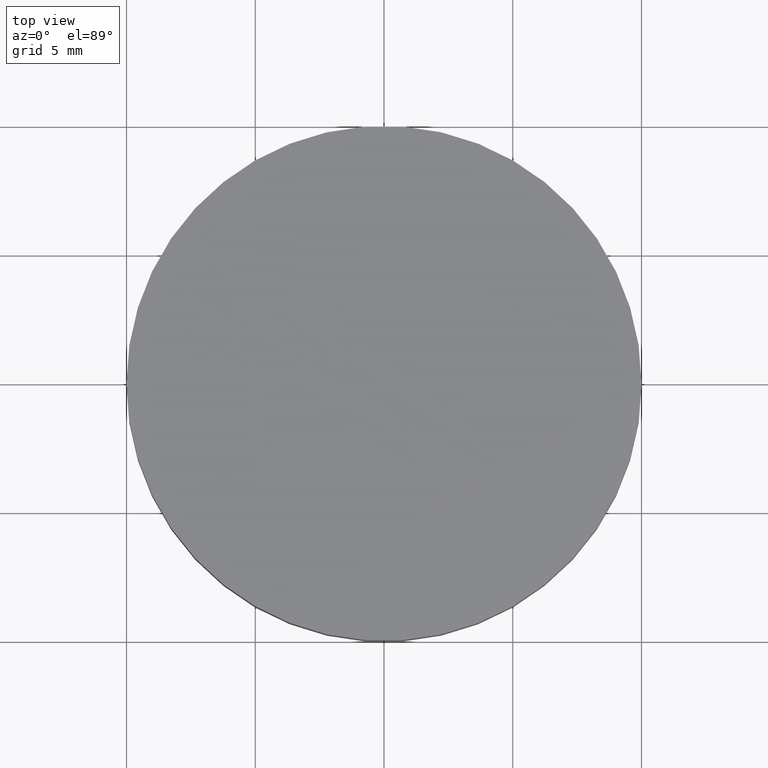
[diagram: clean part render]
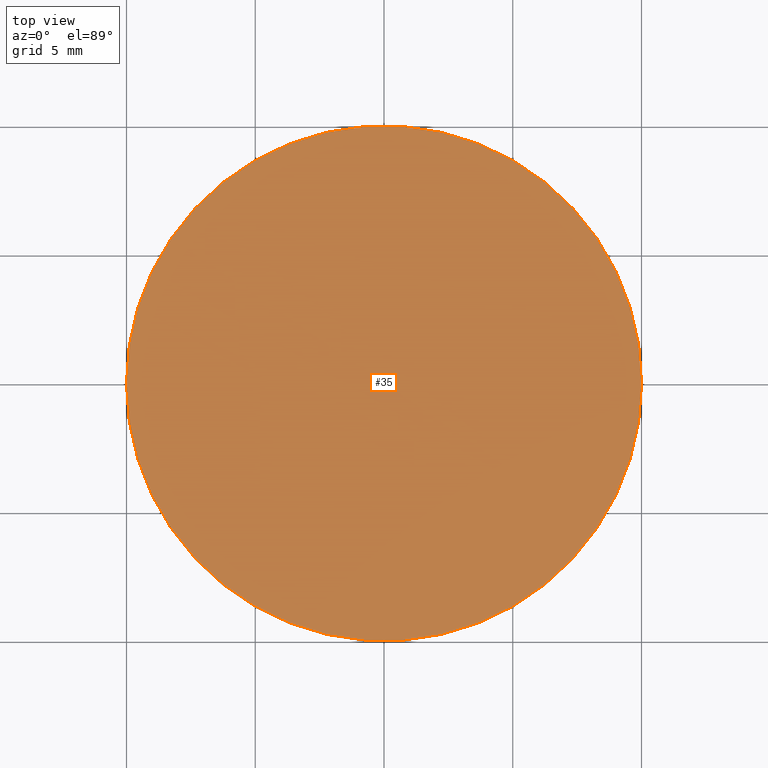
[diagram: same view with one face highlighted and labeled with its STEP entity id]
A machine part, top view. The second image highlights one B-rep face of the part: STEP entity #35.
In plain terms, the highlighted planar face has unit normal (0, 0, 1).
Its self-contained STEP definition (entity closure, byte-faithful):
#5 = DIRECTION ( 'NONE',  ( 1.000000000000000000, 0.0000000000000000000, 0.0000000000000000000 ) ) ;
#16 = CIRCLE ( 'NONE', #181, 10.00000000000000000 ) ;
#17 = EDGE_CURVE ( 'NONE', #126, #213, #64, .T. ) ;
#33 = EDGE_LOOP ( 'NONE', ( #130, #147 ) ) ;
#35 = ADVANCED_FACE ( 'NONE', ( #194 ), #39, .T. ) ;
#39 = PLANE ( 'NONE',  #231 ) ;
#41 = DIRECTION ( 'NONE',  ( 1.000000000000000000, 0.0000000000000000000, -0.0000000000000000000 ) ) ;
#54 = CARTESIAN_POINT ( 'NONE',  ( 0.0000000000000000000, 0.0000000000000000000, 3.000000000000000000 ) ) ;
#57 = DIRECTION ( 'NONE',  ( 1.000000000000000000, 0.0000000000000000000, 0.0000000000000000000 ) ) ;
#64 = CIRCLE ( 'NONE', #138, 10.00000000000000000 ) ;
#67 = EDGE_CURVE ( 'NONE', #213, #126, #16, .T. ) ;
#82 = CARTESIAN_POINT ( 'NONE',  ( -10.00000000000000000, 0.0000000000000000000, 3.000000000000000000 ) ) ;
#95 = DIRECTION ( 'NONE',  ( 0.0000000000000000000, 0.0000000000000000000, 1.000000000000000000 ) ) ;
#116 = DIRECTION ( 'NONE',  ( 0.0000000000000000000, 0.0000000000000000000, 1.000000000000000000 ) ) ;
#126 = VERTEX_POINT ( 'NONE', #239 ) ;
#130 = ORIENTED_EDGE ( 'NONE', *, *, #67, .T. ) ;
#136 = CARTESIAN_POINT ( 'NONE',  ( 0.0000000000000000000, 0.0000000000000000000, 3.000000000000000000 ) ) ;
#138 = AXIS2_PLACEMENT_3D ( 'NONE', #54, #177, #57 ) ;
#147 = ORIENTED_EDGE ( 'NONE', *, *, #17, .T. ) ;
#173 = CARTESIAN_POINT ( 'NONE',  ( 0.0000000000000000000, 0.0000000000000000000, 3.000000000000000000 ) ) ;
#177 = DIRECTION ( 'NONE',  ( 0.0000000000000000000, 0.0000000000000000000, 1.000000000000000000 ) ) ;
#181 = AXIS2_PLACEMENT_3D ( 'NONE', #136, #95, #5 ) ;
#194 = FACE_OUTER_BOUND ( 'NONE', #33, .T. ) ;
#213 = VERTEX_POINT ( 'NONE', #82 ) ;
#231 = AXIS2_PLACEMENT_3D ( 'NONE', #173, #116, #41 ) ;
#239 = CARTESIAN_POINT ( 'NONE',  ( 10.00000000000000000, 1.224646799147353300E-015, 3.000000000000000000 ) ) ;